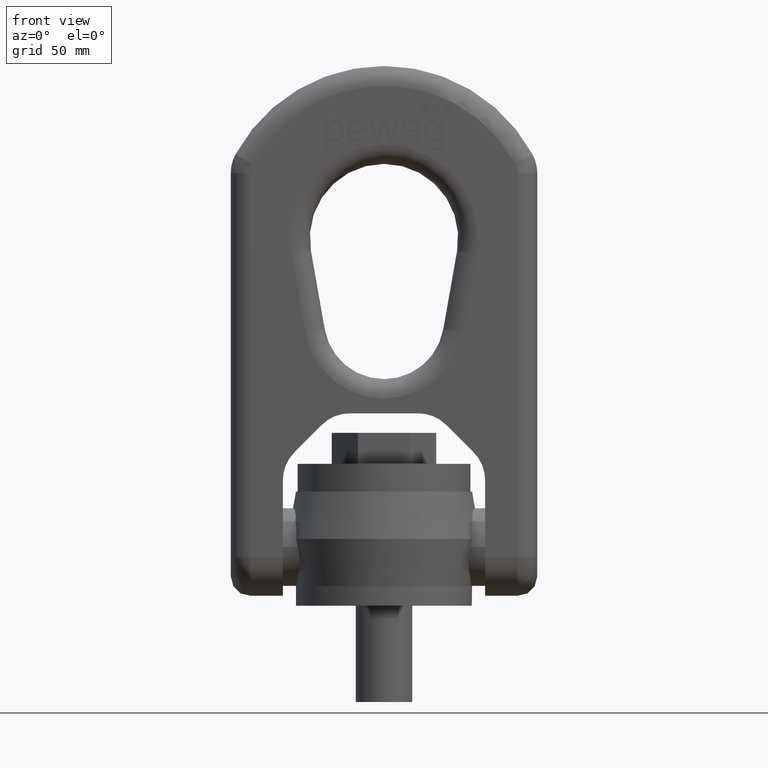
[diagram: clean part render]
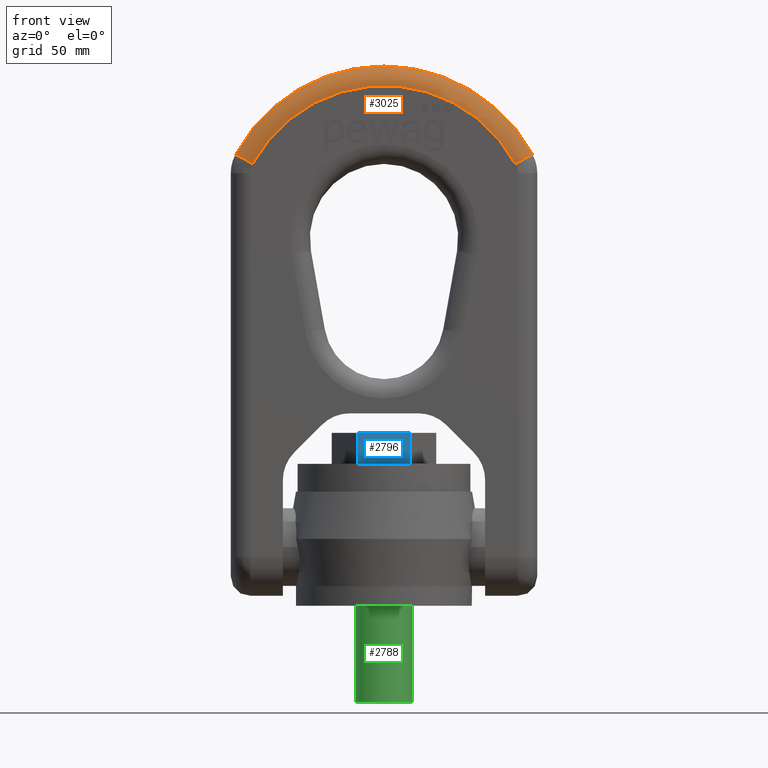
[diagram: same view with three faces highlighted in distinct colors, each labeled with its STEP entity id]
A machine part, front view with three faces highlighted in distinct colors.
Their STEP definitions:

[orange] entity #3025 — the highlighted toroidal blend (fillet) surface has major radius 91.6333 mm and minor (blend) radius 12 mm.
#201=TOROIDAL_SURFACE('',#6039,91.6333333333333,12.);
#2650=FACE_OUTER_BOUND('',#3418,.T.);
#3025=ADVANCED_FACE('',(#2650),#201,.T.);
#3418=EDGE_LOOP('',(#4637,#4638,#4639,#4640));
#4637=ORIENTED_EDGE('',*,*,#5733,.F.);
#4638=ORIENTED_EDGE('',*,*,#5182,.F.);
#4639=ORIENTED_EDGE('',*,*,#5735,.T.);
#4640=ORIENTED_EDGE('',*,*,#5371,.F.);
#4748=VERTEX_POINT('',#7080);
#4749=VERTEX_POINT('',#7082);
#4927=VERTEX_POINT('',#7761);
#4930=VERTEX_POINT('',#7766);
#5182=EDGE_CURVE('',#4748,#4749,#5766,.T.);
#5371=EDGE_CURVE('',#4930,#4927,#5792,.T.);
#5733=EDGE_CURVE('',#4749,#4930,#5811,.T.);
#5735=EDGE_CURVE('',#4748,#4927,#5813,.T.);
#5766=CIRCLE('',#5872,91.6333333333333);
#5792=CIRCLE('',#5905,103.633333333333);
#5811=CIRCLE('',#6036,12.);
#5813=CIRCLE('',#6038,12.);
#5872=AXIS2_PLACEMENT_3D('',#7081,#6202,#6203);
#5905=AXIS2_PLACEMENT_3D('',#7767,#6363,#6364);
#6036=AXIS2_PLACEMENT_3D('',#9737,#6880,#6881);
#6038=AXIS2_PLACEMENT_3D('',#9771,#6884,#6885);
#6039=AXIS2_PLACEMENT_3D('',#9772,#6886,#6887);
#6202=DIRECTION('',(0.,-1.,0.));
#6203=DIRECTION('',(0.,0.,-1.));
#6363=DIRECTION('',(0.,1.,0.));
#6364=DIRECTION('',(0.,0.,-1.));
#6880=DIRECTION('',(-0.476768522394306,0.,-0.879028882377565));
#6881=DIRECTION('',(0.879028882377565,0.,-0.476768522394306));
#6884=DIRECTION('',(-0.476768522394306,5.51374365602785E-16,0.879028882377564));
#6885=DIRECTION('',(-0.879028882377565,0.,-0.476768522394306));
#6886=DIRECTION('',(0.,-1.,0.));
#6887=DIRECTION('',(0.,0.,-1.));
#7080=CARTESIAN_POINT('',(80.5483465885308,-24.,271.054555602065));
#7081=CARTESIAN_POINT('',(0.,-24.,227.366666666667));
#7082=CARTESIAN_POINT('',(-80.5483465885308,-24.,271.054555602065));
#7761=CARTESIAN_POINT('',(91.0966931770616,-12.,276.775777870797));
#7766=CARTESIAN_POINT('',(-91.0966931770616,-12.,276.775777870797));
#7767=CARTESIAN_POINT('',(0.,-12.,227.366666666667));
#9737=CARTESIAN_POINT('',(-80.5483465885308,-12.,271.054555602065));
#9771=CARTESIAN_POINT('',(80.5483465885308,-12.,271.054555602065));
#9772=CARTESIAN_POINT('',(0.,-12.,227.366666666667));

[blue] entity #2796 — the highlighted planar face has unit normal (0, 1, 0).
#1734=LINE('',#6972,#2042);
#1735=LINE('',#6974,#2043);
#1738=LINE('',#6980,#2046);
#1739=LINE('',#6982,#2047);
#2042=VECTOR('',#6103,1.);
#2043=VECTOR('',#6106,1.);
#2046=VECTOR('',#6111,1.);
#2047=VECTOR('',#6112,1.);
#2439=FACE_OUTER_BOUND('',#3155,.T.);
#2670=PLANE('',#5846);
#2796=ADVANCED_FACE('',(#2439),#2670,.F.);
#3155=EDGE_LOOP('',(#3459,#3460,#3461,#3462));
#3459=ORIENTED_EDGE('',*,*,#5130,.T.);
#3460=ORIENTED_EDGE('',*,*,#5134,.F.);
#3461=ORIENTED_EDGE('',*,*,#5135,.F.);
#3462=ORIENTED_EDGE('',*,*,#5131,.T.);
#4706=VERTEX_POINT('',#6963);
#4710=VERTEX_POINT('',#6971);
#4711=VERTEX_POINT('',#6975);
#4713=VERTEX_POINT('',#6981);
#5130=EDGE_CURVE('',#4706,#4710,#1734,.T.);
#5131=EDGE_CURVE('',#4711,#4706,#1735,.T.);
#5134=EDGE_CURVE('',#4713,#4710,#1738,.T.);
#5135=EDGE_CURVE('',#4711,#4713,#1739,.T.);
#5846=AXIS2_PLACEMENT_3D('',#6983,#6113,#6114);
#6103=DIRECTION('',(1.,0.,0.));
#6106=DIRECTION('',(0.,0.,-1.));
#6111=DIRECTION('',(0.,0.,-1.));
#6112=DIRECTION('',(1.,0.,0.));
#6113=DIRECTION('',(0.,1.,0.));
#6114=DIRECTION('',(0.,0.,1.));
#6963=CARTESIAN_POINT('',(-16.0387904780878,-27.78,87.));
#6971=CARTESIAN_POINT('',(16.0387904780878,-27.78,87.));
#6972=CARTESIAN_POINT('',(-16.0387904780878,-27.78,87.));
#6974=CARTESIAN_POINT('',(-16.0387904780878,-27.78,106.));
#6975=CARTESIAN_POINT('',(-16.0387904780878,-27.78,106.));
#6980=CARTESIAN_POINT('',(16.0387904780878,-27.78,106.));
#6981=CARTESIAN_POINT('',(16.0387904780878,-27.78,106.));
#6982=CARTESIAN_POINT('',(-16.0387904780878,-27.78,106.));
#6983=CARTESIAN_POINT('',(-16.0387904780878,-27.78,106.));

[green] entity #2788 — the highlighted cylindrical surface (bore or boss wall) has radius 17.465 mm, axis along (0, 0, 1).
#2788=ADVANCED_FACE('',(#3073,#3074),#3041,.T.);
#3041=CYLINDRICAL_SURFACE('',#5834,17.465);
#3073=FACE_BOUND('',#3141,.T.);
#3074=FACE_BOUND('',#3142,.T.);
#3141=EDGE_LOOP('',(#3437));
#3142=EDGE_LOOP('',(#3438));
#3437=ORIENTED_EDGE('',*,*,#5120,.F.);
#3438=ORIENTED_EDGE('',*,*,#5119,.T.);
#4699=VERTEX_POINT('',#6943);
#4700=VERTEX_POINT('',#6946);
#5119=EDGE_CURVE('',#4699,#4699,#5751,.T.);
#5120=EDGE_CURVE('',#4700,#4700,#5752,.T.);
#5751=CIRCLE('',#5831,17.465);
#5752=CIRCLE('',#5833,17.465);
#5831=AXIS2_PLACEMENT_3D('',#6942,#6072,#6073);
#5833=AXIS2_PLACEMENT_3D('',#6945,#6076,#6077);
#5834=AXIS2_PLACEMENT_3D('',#6947,#6078,#6079);
#6072=DIRECTION('',(0.,0.,-1.));
#6073=DIRECTION('',(-6.12323399573677E-17,1.,0.));
#6076=DIRECTION('',(0.,0.,-1.));
#6077=DIRECTION('',(-6.12323399573677E-17,1.,0.));
#6078=DIRECTION('',(0.,0.,1.));
#6079=DIRECTION('',(1.,0.,0.));
#6942=CARTESIAN_POINT('',(0.,0.,0.));
#6943=CARTESIAN_POINT('',(-1.06942281735543E-15,17.465,0.));
#6945=CARTESIAN_POINT('',(0.,0.,-59.));
#6946=CARTESIAN_POINT('',(-1.06942281735543E-15,17.465,-59.));
#6947=CARTESIAN_POINT('',(0.,0.,-59.));